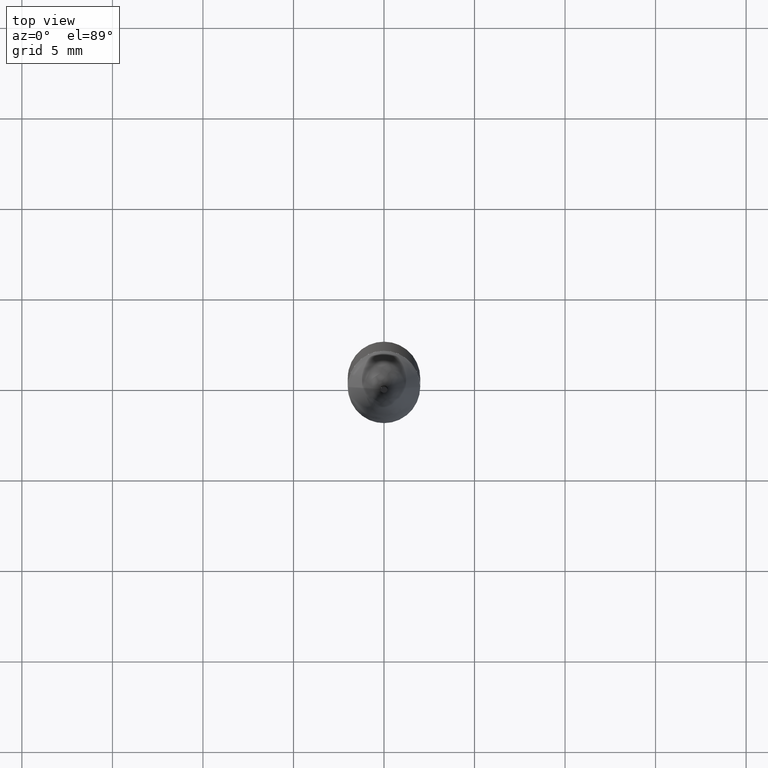
[diagram: clean part render]
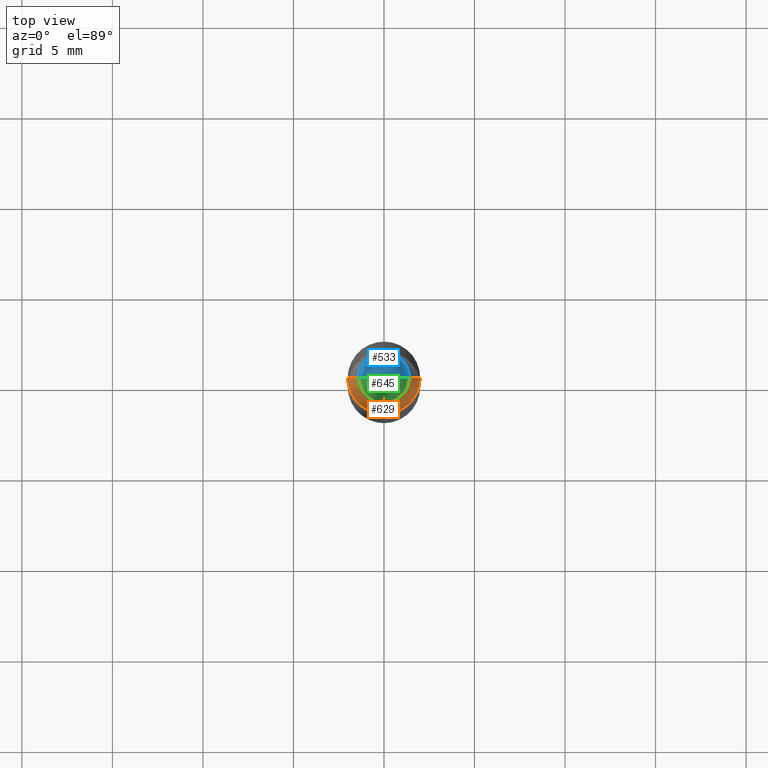
[diagram: same view with three faces highlighted in distinct colors, each labeled with its STEP entity id]
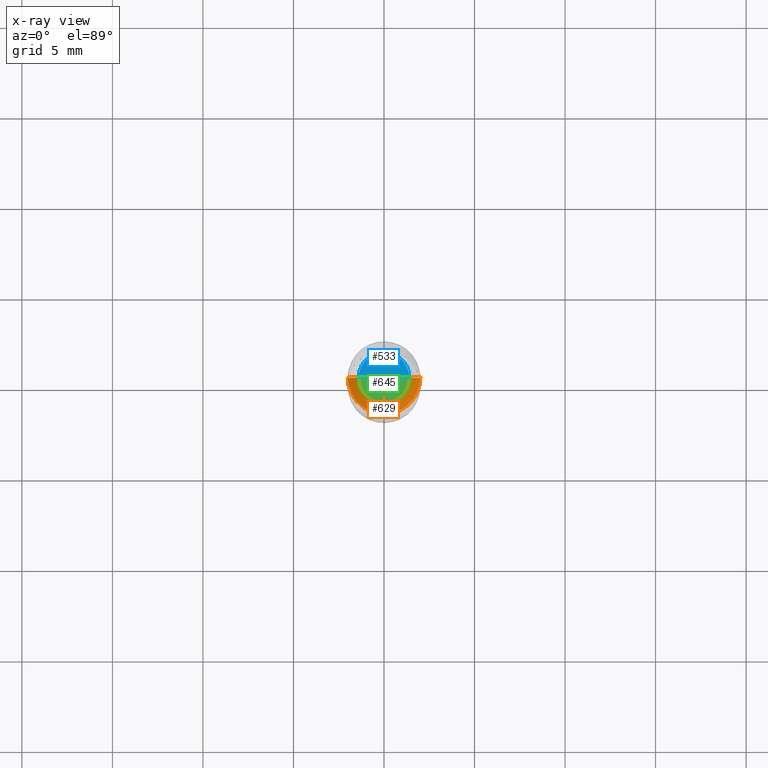
[diagram: x-ray of the same camera — body ghosted, the three highlighted faces saturated]
A machine part, top view with three faces highlighted in distinct colors.
The next image is the same camera in x-ray (body ghosted, the three faces saturated) — at least one of them is partly hidden behind the body in this view.
Their STEP definitions:

[orange] entity #629 — the highlighted face is a freeform B-spline surface patch.
#246=CARTESIAN_POINT('',(2.0,0.0,28.682));
#250=CARTESIAN_POINT('',(-2.0,0.0,28.682));
#251=CARTESIAN_POINT('',(1.4,0.0,29.282));
#255=CARTESIAN_POINT('',(-1.4,0.0,29.282));
#263=CARTESIAN_POINT('',(-2.0,-2.0,28.682));
#264=CARTESIAN_POINT('',(0.0,-2.0,28.682));
#265=CARTESIAN_POINT('',(2.0,-2.0,28.682));
#266=CARTESIAN_POINT('',(-1.4,-1.4,29.282));
#267=CARTESIAN_POINT('',(0.0,-1.4,29.282));
#268=CARTESIAN_POINT('',(1.4,-1.4,29.282));
#610=(
BOUNDED_SURFACE()
B_SPLINE_SURFACE(1,2,(
(#250,#263,#264,#265,#246),
(#255,#266,#267,#268,#251)
), .UNSPECIFIED.,.F.,.F.,.F.)
B_SPLINE_SURFACE_WITH_KNOTS((2,2),(3,2,3),(
0.0,1.0),(
0.0,0.5,1.0), .UNSPECIFIED.)
GEOMETRIC_REPRESENTATION_ITEM()
RATIONAL_B_SPLINE_SURFACE(((1.0,0.707106781187,1.0,0.707106781187,1.0),
(1.0,0.707106781187,1.0,0.707106781187,1.0)
))
REPRESENTATION_ITEM('')
SURFACE()
);
#611=(
BOUNDED_CURVE()
B_SPLINE_CURVE(2,(#255,#266,#267,#268,#251),.UNSPECIFIED.,.F.,.F.)
B_SPLINE_CURVE_WITH_KNOTS((3,2,3),
(0.0,0.5,1.0),.UNSPECIFIED.)
CURVE()
GEOMETRIC_REPRESENTATION_ITEM()
RATIONAL_B_SPLINE_CURVE((1.0,0.707106781187,1.0,0.707106781187,1.0))
REPRESENTATION_ITEM('')
);
#612=(
BOUNDED_CURVE()
B_SPLINE_CURVE(1,(#251,#246),.UNSPECIFIED.,.F.,.F.)
B_SPLINE_CURVE_WITH_KNOTS((2,2),
(0.0,1.0),.UNSPECIFIED.)
CURVE()
GEOMETRIC_REPRESENTATION_ITEM()
RATIONAL_B_SPLINE_CURVE((1.0,1.0))
REPRESENTATION_ITEM('')
);
#613=(
BOUNDED_CURVE()
B_SPLINE_CURVE(2,(#246,#265,#264,#263,#250),.UNSPECIFIED.,.F.,.F.)
B_SPLINE_CURVE_WITH_KNOTS((3,2,3),
(0.0,0.5,1.0),.UNSPECIFIED.)
CURVE()
GEOMETRIC_REPRESENTATION_ITEM()
RATIONAL_B_SPLINE_CURVE((1.0,0.707106781187,1.0,0.707106781187,1.0))
REPRESENTATION_ITEM('')
);
#614=(
BOUNDED_CURVE()
B_SPLINE_CURVE(1,(#250,#255),.UNSPECIFIED.,.F.,.F.)
B_SPLINE_CURVE_WITH_KNOTS((2,2),
(0.0,1.0),.UNSPECIFIED.)
CURVE()
GEOMETRIC_REPRESENTATION_ITEM()
RATIONAL_B_SPLINE_CURVE((1.0,1.0))
REPRESENTATION_ITEM('')
);
#615=VERTEX_POINT('',#246);
#616=VERTEX_POINT('',#250);
#617=VERTEX_POINT('',#251);
#618=VERTEX_POINT('',#255);
#619=EDGE_CURVE('',#618,#617,#611,.T.);
#620=EDGE_CURVE('',#617,#615,#612,.T.);
#621=EDGE_CURVE('',#615,#616,#613,.T.);
#622=EDGE_CURVE('',#616,#618,#614,.T.);
#623=ORIENTED_EDGE('',*,*,#619,.T.);
#624=ORIENTED_EDGE('',*,*,#620,.T.);
#625=ORIENTED_EDGE('',*,*,#621,.T.);
#626=ORIENTED_EDGE('',*,*,#622,.T.);
#627=EDGE_LOOP('',(#623,#624,#625,#626));
#628=FACE_OUTER_BOUND('',#627,.T.);
#629=ADVANCED_FACE('',(#628),#610,.T.);

[blue] entity #533 — the highlighted face is a freeform B-spline surface patch.
#251=CARTESIAN_POINT('',(1.4,0.0,29.282));
#252=CARTESIAN_POINT('',(1.4,1.4,29.282));
#253=CARTESIAN_POINT('',(0.0,1.4,29.282));
#254=CARTESIAN_POINT('',(-1.4,1.4,29.282));
#255=CARTESIAN_POINT('',(-1.4,0.0,29.282));
#256=CARTESIAN_POINT('',(0.0,0.0,29.282));
#518=(
BOUNDED_SURFACE()
B_SPLINE_SURFACE(1,2,(
(#251,#252,#253,#254,#255),
(#256,#256,#256,#256,#256)
), .UNSPECIFIED.,.F.,.F.,.F.)
B_SPLINE_SURFACE_WITH_KNOTS((2,2),(3,2,3),(
0.0,1.0),(
0.0,0.5,1.0), .UNSPECIFIED.)
GEOMETRIC_REPRESENTATION_ITEM()
RATIONAL_B_SPLINE_SURFACE(((1.0,0.707106781187,1.0,0.707106781187,1.0),
(1.0,0.707106781187,1.0,0.707106781187,1.0)
))
REPRESENTATION_ITEM('')
SURFACE()
);
#519=(
BOUNDED_CURVE()
B_SPLINE_CURVE(1,(#256,#251),.UNSPECIFIED.,.F.,.F.)
B_SPLINE_CURVE_WITH_KNOTS((2,2),
(0.0,1.0),.UNSPECIFIED.)
CURVE()
GEOMETRIC_REPRESENTATION_ITEM()
RATIONAL_B_SPLINE_CURVE((1.0,1.0))
REPRESENTATION_ITEM('')
);
#520=(
BOUNDED_CURVE()
B_SPLINE_CURVE(2,(#251,#252,#253,#254,#255),.UNSPECIFIED.,.F.,.F.)
B_SPLINE_CURVE_WITH_KNOTS((3,2,3),
(0.0,0.5,1.0),.UNSPECIFIED.)
CURVE()
GEOMETRIC_REPRESENTATION_ITEM()
RATIONAL_B_SPLINE_CURVE((1.0,0.707106781187,1.0,0.707106781187,1.0))
REPRESENTATION_ITEM('')
);
#521=(
BOUNDED_CURVE()
B_SPLINE_CURVE(1,(#255,#256),.UNSPECIFIED.,.F.,.F.)
B_SPLINE_CURVE_WITH_KNOTS((2,2),
(0.0,1.0),.UNSPECIFIED.)
CURVE()
GEOMETRIC_REPRESENTATION_ITEM()
RATIONAL_B_SPLINE_CURVE((1.0,1.0))
REPRESENTATION_ITEM('')
);
#522=VERTEX_POINT('',#251);
#523=VERTEX_POINT('',#255);
#524=VERTEX_POINT('',#256);
#525=EDGE_CURVE('',#524,#522,#519,.T.);
#526=EDGE_CURVE('',#522,#523,#520,.T.);
#527=EDGE_CURVE('',#523,#524,#521,.T.);
#528=ORIENTED_EDGE('',*,*,#525,.T.);
#529=ORIENTED_EDGE('',*,*,#526,.T.);
#530=ORIENTED_EDGE('',*,*,#527,.T.);
#531=EDGE_LOOP('',(#528,#529,#530));
#532=FACE_OUTER_BOUND('',#531,.T.);
#533=ADVANCED_FACE('',(#532),#518,.T.);

[green] entity #645 — the highlighted face is a freeform B-spline surface patch.
#251=CARTESIAN_POINT('',(1.4,0.0,29.282));
#255=CARTESIAN_POINT('',(-1.4,0.0,29.282));
#256=CARTESIAN_POINT('',(0.0,0.0,29.282));
#266=CARTESIAN_POINT('',(-1.4,-1.4,29.282));
#267=CARTESIAN_POINT('',(0.0,-1.4,29.282));
#268=CARTESIAN_POINT('',(1.4,-1.4,29.282));
#630=(
BOUNDED_SURFACE()
B_SPLINE_SURFACE(1,2,(
(#255,#266,#267,#268,#251),
(#256,#256,#256,#256,#256)
), .UNSPECIFIED.,.F.,.F.,.F.)
B_SPLINE_SURFACE_WITH_KNOTS((2,2),(3,2,3),(
0.0,1.0),(
0.0,0.5,1.0), .UNSPECIFIED.)
GEOMETRIC_REPRESENTATION_ITEM()
RATIONAL_B_SPLINE_SURFACE(((1.0,0.707106781187,1.0,0.707106781187,1.0),
(1.0,0.707106781187,1.0,0.707106781187,1.0)
))
REPRESENTATION_ITEM('')
SURFACE()
);
#631=(
BOUNDED_CURVE()
B_SPLINE_CURVE(1,(#256,#251),.UNSPECIFIED.,.F.,.F.)
B_SPLINE_CURVE_WITH_KNOTS((2,2),
(0.0,1.0),.UNSPECIFIED.)
CURVE()
GEOMETRIC_REPRESENTATION_ITEM()
RATIONAL_B_SPLINE_CURVE((1.0,1.0))
REPRESENTATION_ITEM('')
);
#632=(
BOUNDED_CURVE()
B_SPLINE_CURVE(2,(#251,#268,#267,#266,#255),.UNSPECIFIED.,.F.,.F.)
B_SPLINE_CURVE_WITH_KNOTS((3,2,3),
(0.0,0.5,1.0),.UNSPECIFIED.)
CURVE()
GEOMETRIC_REPRESENTATION_ITEM()
RATIONAL_B_SPLINE_CURVE((1.0,0.707106781187,1.0,0.707106781187,1.0))
REPRESENTATION_ITEM('')
);
#633=(
BOUNDED_CURVE()
B_SPLINE_CURVE(1,(#255,#256),.UNSPECIFIED.,.F.,.F.)
B_SPLINE_CURVE_WITH_KNOTS((2,2),
(0.0,1.0),.UNSPECIFIED.)
CURVE()
GEOMETRIC_REPRESENTATION_ITEM()
RATIONAL_B_SPLINE_CURVE((1.0,1.0))
REPRESENTATION_ITEM('')
);
#634=VERTEX_POINT('',#251);
#635=VERTEX_POINT('',#255);
#636=VERTEX_POINT('',#256);
#637=EDGE_CURVE('',#636,#634,#631,.T.);
#638=EDGE_CURVE('',#634,#635,#632,.T.);
#639=EDGE_CURVE('',#635,#636,#633,.T.);
#640=ORIENTED_EDGE('',*,*,#637,.T.);
#641=ORIENTED_EDGE('',*,*,#638,.T.);
#642=ORIENTED_EDGE('',*,*,#639,.T.);
#643=EDGE_LOOP('',(#640,#641,#642));
#644=FACE_OUTER_BOUND('',#643,.T.);
#645=ADVANCED_FACE('',(#644),#630,.T.);